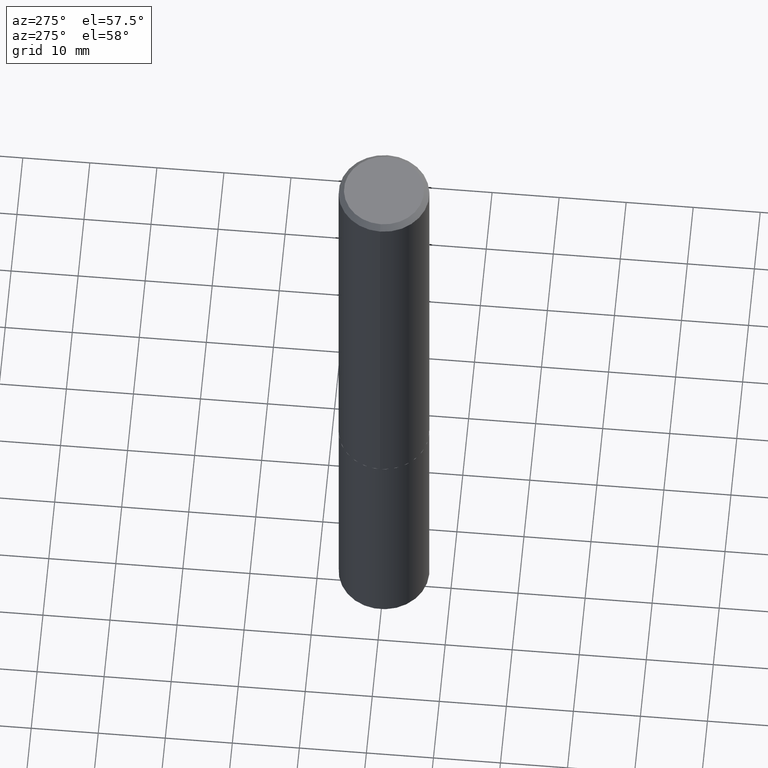
[diagram: clean part render]
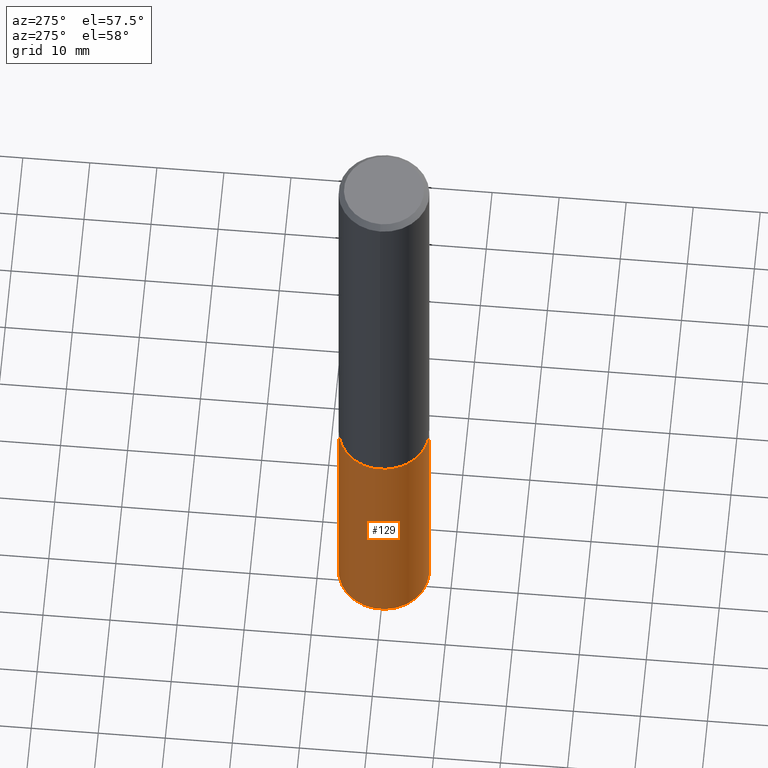
[diagram: same view with one face highlighted and labeled with its STEP entity id]
A machine part, auxiliary view. The second image highlights one B-rep face of the part: STEP entity #129.
In plain terms, the highlighted cylindrical surface (partial cylindrical patch) has radius 6.75 mm, axis along (-0, 0, 1).
Its self-contained STEP definition (entity closure, byte-faithful):
#14 = CARTESIAN_POINT ( 'NONE',  ( 6.402481881473307615E-29, -9.141047293225240652E-15, -2.618100000000000094 ) ) ;
#18 = VERTEX_POINT ( 'NONE', #172 ) ;
#26 = CARTESIAN_POINT ( 'NONE',  ( -1.855722331595061055E-15, -0.2657500000000091456, -2.618099999999999206 ) ) ;
#32 = DIRECTION ( 'NONE',  ( -2.445613187087085095E-29, 3.491274577173904223E-15, 1.000000000000000000 ) ) ;
#38 = DIRECTION ( 'NONE',  ( -6.982962677686266711E-15, -1.000000000000000000, 4.111906669673397387E-15 ) ) ;
#44 = DIRECTION ( 'NONE',  ( -6.982962677686266711E-15, -1.000000000000000000, 4.111906669673397387E-15 ) ) ;
#51 = VERTEX_POINT ( 'NONE', #26 ) ;
#59 = CIRCLE ( 'NONE', #111, 0.2657499999999999862 ) ;
#100 = CARTESIAN_POINT ( 'NONE',  ( 1.888267320282567515E-15, 0.2657499999999856088, -4.141392502111431284 ) ) ;
#103 = CYLINDRICAL_SURFACE ( 'NONE', #281, 0.2657499999999999862 ) ;
#104 = EDGE_CURVE ( 'NONE', #198, #51, #59, .T. ) ;
#111 = AXIS2_PLACEMENT_3D ( 'NONE', #220, #247, #38 ) ;
#113 = EDGE_CURVE ( 'NONE', #222, #198, #216, .T. ) ;
#123 = CARTESIAN_POINT ( 'NONE',  ( 1.888267320282530044E-15, 0.2657499999999908269, -2.618100000000001426 ) ) ;
#129 = ADVANCED_FACE ( 'NONE', ( #243 ), #103, .T. ) ;
#133 = VECTOR ( 'NONE', #299, 39.37007874015748143 ) ;
#138 = AXIS2_PLACEMENT_3D ( 'NONE', #153, #266, #224 ) ;
#153 = CARTESIAN_POINT ( 'NONE',  ( 1.012786611242790228E-28, -1.445927967944650304E-14, -4.141392502111430396 ) ) ;
#172 = CARTESIAN_POINT ( 'NONE',  ( -1.855722331595024373E-15, -0.2657500000000144746, -4.141392502111429508 ) ) ;
#191 = CARTESIAN_POINT ( 'NONE',  ( 1.888267320282567515E-15, 0.2657499999999908824, -2.618100000000001426 ) ) ;
#198 = VERTEX_POINT ( 'NONE', #191 ) ;
#206 = ORIENTED_EDGE ( 'NONE', *, *, #302, .T. ) ;
#216 = LINE ( 'NONE', #123, #133 ) ;
#217 = VECTOR ( 'NONE', #32, 39.37007874015748143 ) ;
#220 = CARTESIAN_POINT ( 'NONE',  ( 6.402481881473307615E-29, -9.141047293225240652E-15, -2.618100000000000094 ) ) ;
#222 = VERTEX_POINT ( 'NONE', #100 ) ;
#224 = DIRECTION ( 'NONE',  ( -6.982962677686266711E-15, -1.000000000000000000, 4.111906669673397387E-15 ) ) ;
#225 = EDGE_LOOP ( 'NONE', ( #280, #206, #354, #346 ) ) ;
#243 = FACE_OUTER_BOUND ( 'NONE', #225, .T. ) ;
#247 = DIRECTION ( 'NONE',  ( -2.445613187087085095E-29, 3.491274577173904618E-15, 1.000000000000000000 ) ) ;
#266 = DIRECTION ( 'NONE',  ( -2.445613187087085095E-29, 3.491274577173904618E-15, 1.000000000000000000 ) ) ;
#280 = ORIENTED_EDGE ( 'NONE', *, *, #113, .F. ) ;
#281 = AXIS2_PLACEMENT_3D ( 'NONE', #14, #331, #44 ) ;
#293 = CIRCLE ( 'NONE', #138, 0.2657499999999999862 ) ;
#299 = DIRECTION ( 'NONE',  ( -2.445613187087085095E-29, 3.491274577173904223E-15, 1.000000000000000000 ) ) ;
#302 = EDGE_CURVE ( 'NONE', #222, #18, #293, .T. ) ;
#315 = CARTESIAN_POINT ( 'NONE',  ( -1.855722331595061055E-15, -0.2657500000000091456, -2.618099999999999206 ) ) ;
#317 = LINE ( 'NONE', #315, #217 ) ;
#331 = DIRECTION ( 'NONE',  ( -2.445613187087085095E-29, 3.491274577173904618E-15, 1.000000000000000000 ) ) ;
#346 = ORIENTED_EDGE ( 'NONE', *, *, #104, .F. ) ;
#354 = ORIENTED_EDGE ( 'NONE', *, *, #380, .T. ) ;
#380 = EDGE_CURVE ( 'NONE', #18, #51, #317, .T. ) ;